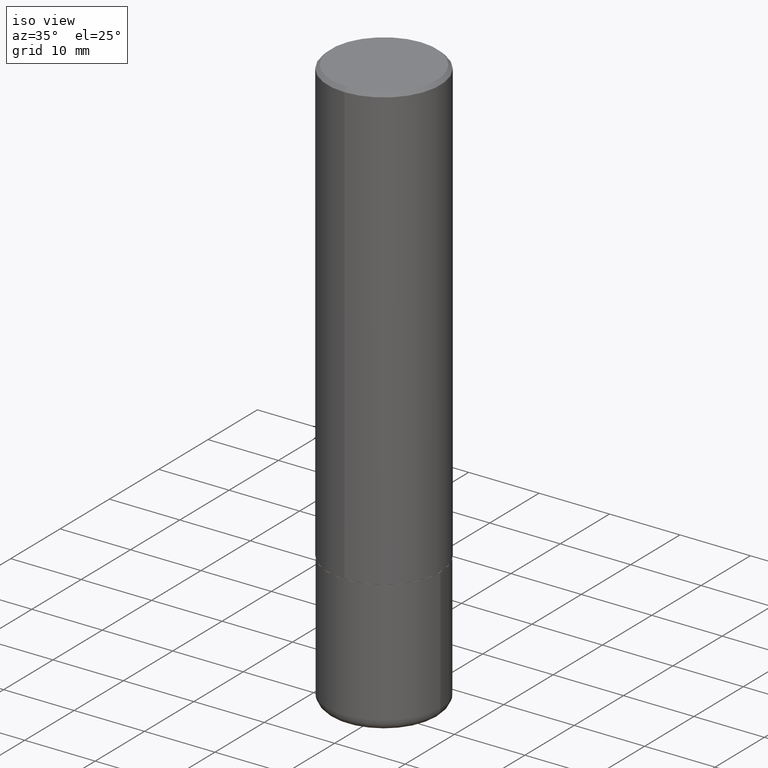
[diagram: clean part render]
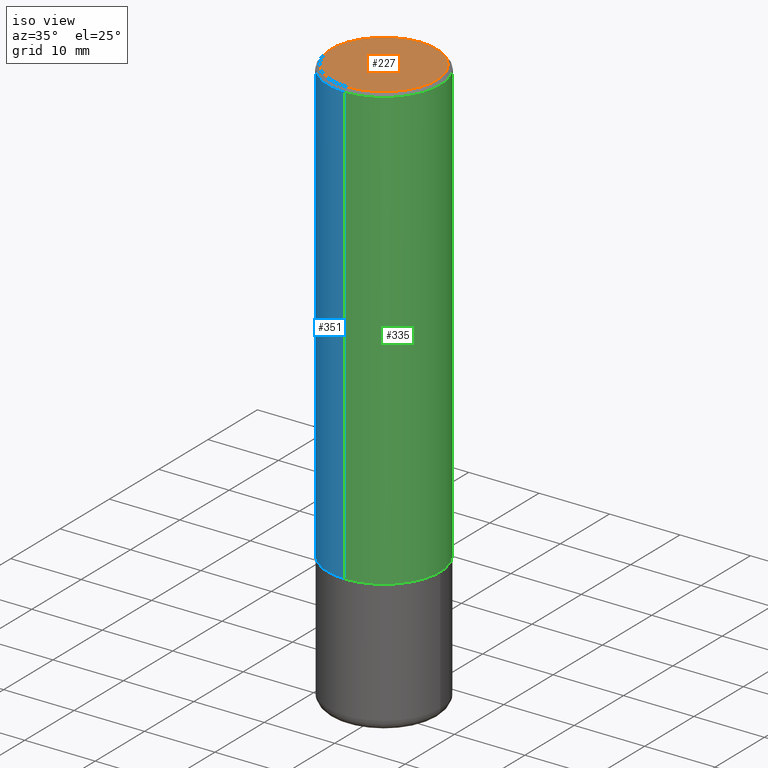
[diagram: same view with three faces highlighted in distinct colors, each labeled with its STEP entity id]
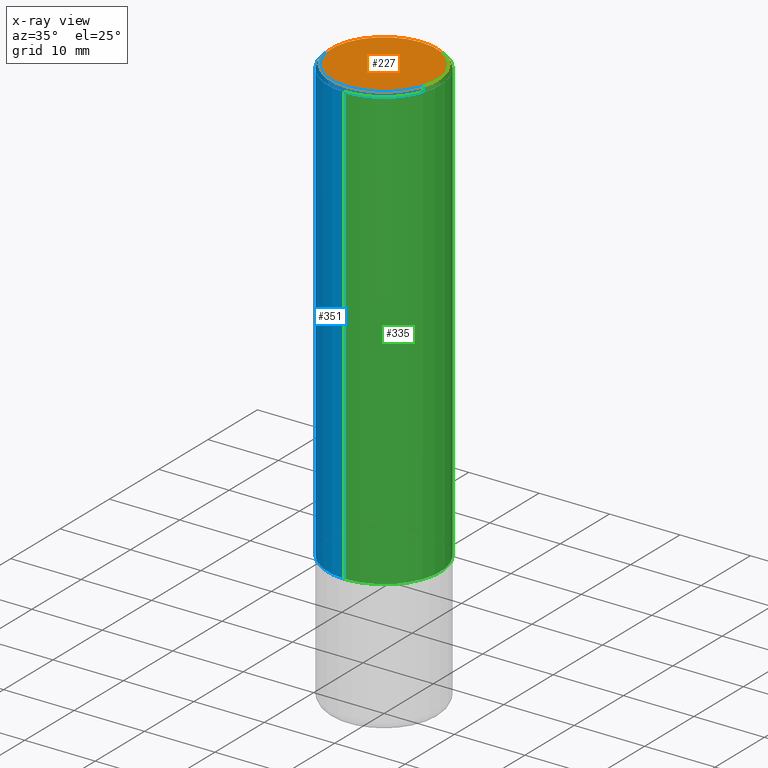
[diagram: x-ray of the same camera — body ghosted, the three highlighted faces saturated]
A machine part, iso view with three faces highlighted in distinct colors.
The next image is the same camera in x-ray (body ghosted, the three faces saturated) — at least one of them is partly hidden behind the body in this view.
Their STEP definitions:

[orange] entity #227 — the highlighted planar face has unit normal (0, -0, -1).
#27 = ORIENTED_EDGE ( 'NONE', *, *, #54, .T. ) ;
#41 = DIRECTION ( 'NONE',  ( 6.982962677686265922E-15, 1.000000000000000000, -3.496972028735619395E-15 ) ) ;
#54 = EDGE_CURVE ( 'NONE', #405, #282, #105, .T. ) ;
#60 = EDGE_LOOP ( 'NONE', ( #90, #27 ) ) ;
#72 = CARTESIAN_POINT ( 'NONE',  ( 2.059624841783564852E-15, 0.2949500000000001010, -1.058367491569331424E-15 ) ) ;
#83 = AXIS2_PLACEMENT_3D ( 'NONE', #96, #388, #384 ) ;
#89 = DIRECTION ( 'NONE',  ( -2.441634677925747084E-29, 3.496972028735619789E-15, 1.000000000000000000 ) ) ;
#90 = ORIENTED_EDGE ( 'NONE', *, *, #393, .T. ) ;
#96 = CARTESIAN_POINT ( 'NONE',  ( 1.315337494998664914E-45, -1.883860214610447732E-31, -5.387118338752009983E-17 ) ) ;
#105 = CIRCLE ( 'NONE', #83, 0.2949500000000001010 ) ;
#120 = CARTESIAN_POINT ( 'NONE',  ( 1.315337494998664914E-45, -1.883860214610447732E-31, -5.387118338752009983E-17 ) ) ;
#125 = AXIS2_PLACEMENT_3D ( 'NONE', #120, #89, #318 ) ;
#148 = DIRECTION ( 'NONE',  ( 2.441634677925746804E-29, -3.496972028735619395E-15, -1.000000000000000000 ) ) ;
#227 = ADVANCED_FACE ( 'NONE', ( #338 ), #240, .F. ) ;
#236 = CARTESIAN_POINT ( 'NONE',  ( 2.129454468560427362E-15, 0.2949500000000001010, -1.085303083263091523E-15 ) ) ;
#240 = PLANE ( 'NONE',  #294 ) ;
#282 = VERTEX_POINT ( 'NONE', #236 ) ;
#284 = CARTESIAN_POINT ( 'NONE',  ( -2.092108864420428426E-15, -0.2949500000000001010, 9.775607164880511260E-16 ) ) ;
#294 = AXIS2_PLACEMENT_3D ( 'NONE', #72, #148, #41 ) ;
#310 = CIRCLE ( 'NONE', #125, 0.2949500000000001010 ) ;
#318 = DIRECTION ( 'NONE',  ( -6.982962677686265922E-15, -1.000000000000000000, 3.496972028735619395E-15 ) ) ;
#338 = FACE_OUTER_BOUND ( 'NONE', #60, .T. ) ;
#384 = DIRECTION ( 'NONE',  ( -6.982962677686265922E-15, -1.000000000000000000, 3.496972028735619395E-15 ) ) ;
#388 = DIRECTION ( 'NONE',  ( -2.441634677925747084E-29, 3.496972028735619789E-15, 1.000000000000000000 ) ) ;
#393 = EDGE_CURVE ( 'NONE', #282, #405, #310, .T. ) ;
#405 = VERTEX_POINT ( 'NONE', #284 ) ;

[blue] entity #351 — the highlighted cylindrical surface (partial cylindrical patch) has radius 7.9997 mm, axis along (-0, 0, 1).
#1 = CARTESIAN_POINT ( 'NONE',  ( -2.199284095337290265E-15, -0.3149500000000001743, 1.101371340450283917E-15 ) ) ;
#17 = CYLINDRICAL_SURFACE ( 'NONE', #336, 0.3149500000000001743 ) ;
#20 = AXIS2_PLACEMENT_3D ( 'NONE', #195, #390, #166 ) ;
#32 = EDGE_CURVE ( 'NONE', #412, #321, #154, .T. ) ;
#39 = DIRECTION ( 'NONE',  ( -2.441634677925747084E-29, 3.496972028735619395E-15, 1.000000000000000000 ) ) ;
#48 = CARTESIAN_POINT ( 'NONE',  ( 2.237854346276435985E-15, 0.3149500000000001743, -1.101371340450283917E-15 ) ) ;
#53 = VERTEX_POINT ( 'NONE', #256 ) ;
#57 = EDGE_LOOP ( 'NONE', ( #343, #252, #93, #226 ) ) ;
#65 = LINE ( 'NONE', #1, #132 ) ;
#75 = EDGE_CURVE ( 'NONE', #53, #321, #65, .T. ) ;
#81 = CARTESIAN_POINT ( 'NONE',  ( 2.237854346276467145E-15, 0.3149499999999916255, -2.479300000000001614 ) ) ;
#84 = DIRECTION ( 'NONE',  ( -2.441634677925747084E-29, 3.496972028735619789E-15, 1.000000000000000000 ) ) ;
#92 = CARTESIAN_POINT ( 'NONE',  ( 2.199284095337289871E-15, 0.3149499999999999522, -0.02000000000000120084 ) ) ;
#93 = ORIENTED_EDGE ( 'NONE', *, *, #75, .T. ) ;
#97 = CIRCLE ( 'NONE', #354, 0.3149500000000002853 ) ;
#132 = VECTOR ( 'NONE', #39, 39.37007874015748143 ) ;
#139 = DIRECTION ( 'NONE',  ( -2.441634677925747084E-29, 3.496972028735619789E-15, 1.000000000000000000 ) ) ;
#154 = CIRCLE ( 'NONE', #20, 0.3149500000000000077 ) ;
#157 = VERTEX_POINT ( 'NONE', #81 ) ;
#166 = DIRECTION ( 'NONE',  ( -6.982962677686265922E-15, -1.000000000000000000, 3.496670018878889100E-15 ) ) ;
#183 = CARTESIAN_POINT ( 'NONE',  ( 0.000000000000000000, 0.000000000000000000, 0.000000000000000000 ) ) ;
#190 = FACE_OUTER_BOUND ( 'NONE', #57, .T. ) ;
#195 = CARTESIAN_POINT ( 'NONE',  ( 4.883269355851518516E-31, -6.993944057471272858E-17, -0.02000000000000009756 ) ) ;
#207 = DIRECTION ( 'NONE',  ( -2.441634677925747084E-29, 3.496972028735619395E-15, 1.000000000000000000 ) ) ;
#226 = ORIENTED_EDGE ( 'NONE', *, *, #32, .F. ) ;
#241 = EDGE_CURVE ( 'NONE', #157, #412, #272, .T. ) ;
#252 = ORIENTED_EDGE ( 'NONE', *, *, #296, .T. ) ;
#256 = CARTESIAN_POINT ( 'NONE',  ( -2.199284095337230706E-15, -0.3149500000000089450, -2.479299999999999393 ) ) ;
#272 = LINE ( 'NONE', #48, #288 ) ;
#288 = VECTOR ( 'NONE', #207, 39.37007874015748143 ) ;
#296 = EDGE_CURVE ( 'NONE', #157, #53, #97, .T. ) ;
#301 = DIRECTION ( 'NONE',  ( -6.982962677686265922E-15, -1.000000000000000000, 3.469564049740290009E-15 ) ) ;
#304 = CARTESIAN_POINT ( 'NONE',  ( 6.053544856981305662E-29, -8.670042750844224214E-15, -2.479300000000000725 ) ) ;
#321 = VERTEX_POINT ( 'NONE', #337 ) ;
#336 = AXIS2_PLACEMENT_3D ( 'NONE', #183, #84, #374 ) ;
#337 = CARTESIAN_POINT ( 'NONE',  ( -2.160713844398143363E-15, -0.3149500000000000632, -0.01999999999999899775 ) ) ;
#343 = ORIENTED_EDGE ( 'NONE', *, *, #241, .F. ) ;
#351 = ADVANCED_FACE ( 'NONE', ( #190 ), #17, .T. ) ;
#354 = AXIS2_PLACEMENT_3D ( 'NONE', #304, #139, #301 ) ;
#374 = DIRECTION ( 'NONE',  ( -6.982962677686264344E-15, -1.000000000000000000, 3.496972028735619395E-15 ) ) ;
#390 = DIRECTION ( 'NONE',  ( -2.441634677925747084E-29, 3.496972028735619789E-15, 1.000000000000000000 ) ) ;
#412 = VERTEX_POINT ( 'NONE', #92 ) ;

[green] entity #335 — the highlighted cylindrical surface (partial cylindrical patch) has radius 7.9997 mm, axis along (-0, 0, 1).
#1 = CARTESIAN_POINT ( 'NONE',  ( -2.199284095337290265E-15, -0.3149500000000001743, 1.101371340450283917E-15 ) ) ;
#8 = AXIS2_PLACEMENT_3D ( 'NONE', #311, #112, #334 ) ;
#16 = CARTESIAN_POINT ( 'NONE',  ( 6.053544856981305662E-29, -8.670042750844224214E-15, -2.479300000000000725 ) ) ;
#28 = CYLINDRICAL_SURFACE ( 'NONE', #225, 0.3149500000000001743 ) ;
#31 = ORIENTED_EDGE ( 'NONE', *, *, #241, .T. ) ;
#39 = DIRECTION ( 'NONE',  ( -2.441634677925747084E-29, 3.496972028735619395E-15, 1.000000000000000000 ) ) ;
#48 = CARTESIAN_POINT ( 'NONE',  ( 2.237854346276435985E-15, 0.3149500000000001743, -1.101371340450283917E-15 ) ) ;
#53 = VERTEX_POINT ( 'NONE', #256 ) ;
#55 = AXIS2_PLACEMENT_3D ( 'NONE', #16, #238, #369 ) ;
#56 = DIRECTION ( 'NONE',  ( -6.982962677686264344E-15, -1.000000000000000000, 3.496972028735619395E-15 ) ) ;
#59 = EDGE_LOOP ( 'NONE', ( #191, #31, #316, #87 ) ) ;
#65 = LINE ( 'NONE', #1, #132 ) ;
#75 = EDGE_CURVE ( 'NONE', #53, #321, #65, .T. ) ;
#81 = CARTESIAN_POINT ( 'NONE',  ( 2.237854346276467145E-15, 0.3149499999999916255, -2.479300000000001614 ) ) ;
#87 = ORIENTED_EDGE ( 'NONE', *, *, #75, .F. ) ;
#92 = CARTESIAN_POINT ( 'NONE',  ( 2.199284095337289871E-15, 0.3149499999999999522, -0.02000000000000120084 ) ) ;
#112 = DIRECTION ( 'NONE',  ( -2.441634677925747084E-29, 3.496972028735619789E-15, 1.000000000000000000 ) ) ;
#132 = VECTOR ( 'NONE', #39, 39.37007874015748143 ) ;
#157 = VERTEX_POINT ( 'NONE', #81 ) ;
#191 = ORIENTED_EDGE ( 'NONE', *, *, #221, .T. ) ;
#207 = DIRECTION ( 'NONE',  ( -2.441634677925747084E-29, 3.496972028735619395E-15, 1.000000000000000000 ) ) ;
#221 = EDGE_CURVE ( 'NONE', #53, #157, #368, .T. ) ;
#225 = AXIS2_PLACEMENT_3D ( 'NONE', #407, #377, #56 ) ;
#238 = DIRECTION ( 'NONE',  ( -2.441634677925747084E-29, 3.496972028735619789E-15, 1.000000000000000000 ) ) ;
#241 = EDGE_CURVE ( 'NONE', #157, #412, #272, .T. ) ;
#256 = CARTESIAN_POINT ( 'NONE',  ( -2.199284095337230706E-15, -0.3149500000000089450, -2.479299999999999393 ) ) ;
#272 = LINE ( 'NONE', #48, #288 ) ;
#280 = EDGE_CURVE ( 'NONE', #321, #412, #302, .T. ) ;
#288 = VECTOR ( 'NONE', #207, 39.37007874015748143 ) ;
#302 = CIRCLE ( 'NONE', #8, 0.3149500000000000077 ) ;
#311 = CARTESIAN_POINT ( 'NONE',  ( 4.883269355851518516E-31, -6.993944057471272858E-17, -0.02000000000000009756 ) ) ;
#312 = FACE_OUTER_BOUND ( 'NONE', #59, .T. ) ;
#316 = ORIENTED_EDGE ( 'NONE', *, *, #280, .F. ) ;
#321 = VERTEX_POINT ( 'NONE', #337 ) ;
#334 = DIRECTION ( 'NONE',  ( -6.982962677686265922E-15, -1.000000000000000000, 3.496670018878889100E-15 ) ) ;
#335 = ADVANCED_FACE ( 'NONE', ( #312 ), #28, .T. ) ;
#337 = CARTESIAN_POINT ( 'NONE',  ( -2.160713844398143363E-15, -0.3149500000000000632, -0.01999999999999899775 ) ) ;
#368 = CIRCLE ( 'NONE', #55, 0.3149500000000002853 ) ;
#369 = DIRECTION ( 'NONE',  ( -6.982962677686265922E-15, -1.000000000000000000, 3.469564049740290009E-15 ) ) ;
#377 = DIRECTION ( 'NONE',  ( -2.441634677925747084E-29, 3.496972028735619789E-15, 1.000000000000000000 ) ) ;
#407 = CARTESIAN_POINT ( 'NONE',  ( 0.000000000000000000, 0.000000000000000000, 0.000000000000000000 ) ) ;
#412 = VERTEX_POINT ( 'NONE', #92 ) ;